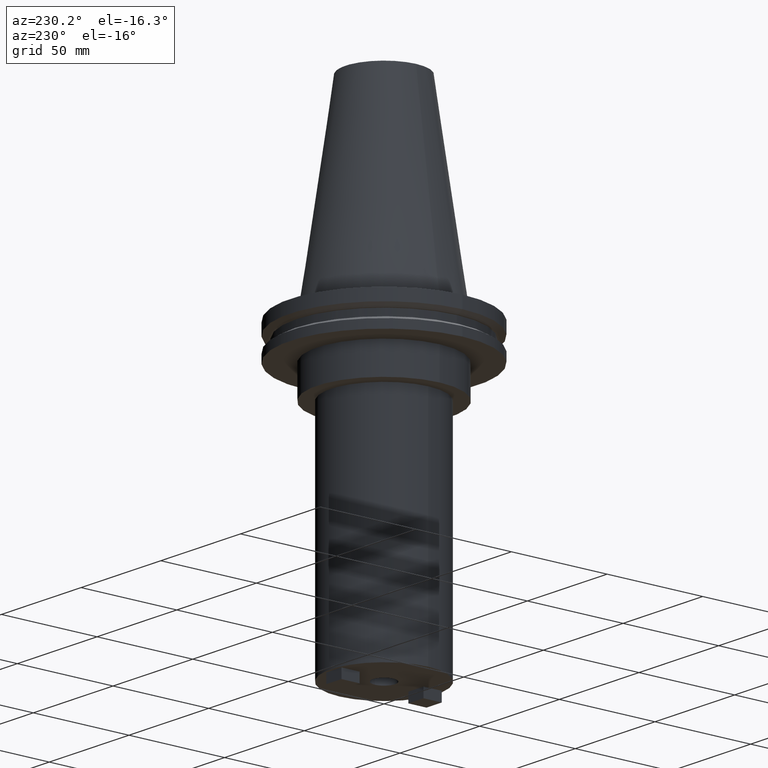
[diagram: clean part render]
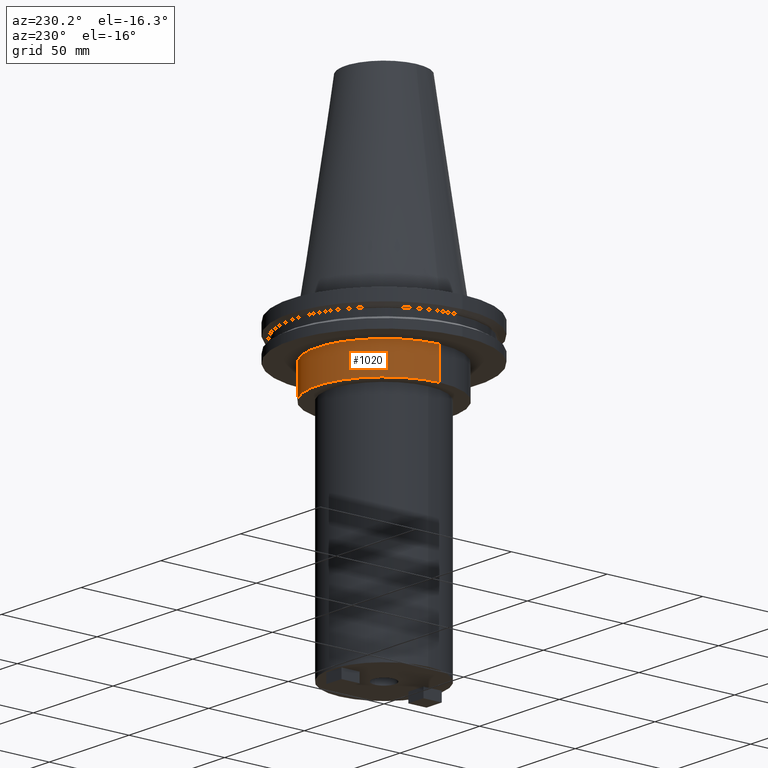
[diagram: same view with one face highlighted and labeled with its STEP entity id]
A machine part, auxiliary view. The second image highlights one B-rep face of the part: STEP entity #1020.
In plain terms, the highlighted cylindrical surface (partial cylindrical patch) has radius 34.925 mm, axis along (-0, -0, 1).
Its self-contained STEP definition (entity closure, byte-faithful):
#26 = VERTEX_POINT ( 'NONE', #225 ) ;
#124 = EDGE_CURVE ( 'NONE', #773, #1072, #734, .T. ) ;
#127 = CARTESIAN_POINT ( 'NONE',  ( 0.000000000000000000, 0.000000000000000000, 101.5999999999999943 ) ) ;
#133 = EDGE_LOOP ( 'NONE', ( #1035, #919, #988, #987 ) ) ;
#163 = CARTESIAN_POINT ( 'NONE',  ( -34.92499999999999716, 4.277078946022130887E-15, -19.04999999999999716 ) ) ;
#172 = DIRECTION ( 'NONE',  ( -0.000000000000000000, -0.000000000000000000, 1.000000000000000000 ) ) ;
#197 = EDGE_CURVE ( 'NONE', #773, #26, #589, .T. ) ;
#199 = EDGE_CURVE ( 'NONE', #1072, #910, #994, .T. ) ;
#225 = CARTESIAN_POINT ( 'NONE',  ( 34.92499999999999716, 0.000000000000000000, -19.04999999999999716 ) ) ;
#283 = VECTOR ( 'NONE', #416, 1000.000000000000000 ) ;
#416 = DIRECTION ( 'NONE',  ( -0.000000000000000000, -0.000000000000000000, 1.000000000000000000 ) ) ;
#468 = AXIS2_PLACEMENT_3D ( 'NONE', #918, #862, #689 ) ;
#474 = VECTOR ( 'NONE', #172, 1000.000000000000000 ) ;
#502 = CARTESIAN_POINT ( 'NONE',  ( -34.92499999999999716, 4.277078946022130887E-15, 101.5999999999999943 ) ) ;
#589 = LINE ( 'NONE', #933, #474 ) ;
#599 = EDGE_CURVE ( 'NONE', #26, #910, #948, .T. ) ;
#689 = DIRECTION ( 'NONE',  ( 1.000000000000000000, 0.000000000000000000, 0.000000000000000000 ) ) ;
#734 = CIRCLE ( 'NONE', #803, 34.92499999999999716 ) ;
#748 = CARTESIAN_POINT ( 'NONE',  ( 34.92499999999999716, 0.000000000000000000, -35.04999999999999716 ) ) ;
#756 = DIRECTION ( 'NONE',  ( -0.000000000000000000, -0.000000000000000000, 1.000000000000000000 ) ) ;
#773 = VERTEX_POINT ( 'NONE', #748 ) ;
#793 = FACE_OUTER_BOUND ( 'NONE', #133, .T. ) ;
#803 = AXIS2_PLACEMENT_3D ( 'NONE', #917, #756, #1089 ) ;
#804 = DIRECTION ( 'NONE',  ( -0.000000000000000000, -0.000000000000000000, 1.000000000000000000 ) ) ;
#862 = DIRECTION ( 'NONE',  ( -0.000000000000000000, -0.000000000000000000, 1.000000000000000000 ) ) ;
#877 = CYLINDRICAL_SURFACE ( 'NONE', #996, 34.92499999999999716 ) ;
#910 = VERTEX_POINT ( 'NONE', #163 ) ;
#917 = CARTESIAN_POINT ( 'NONE',  ( 0.000000000000000000, 0.000000000000000000, -35.04999999999999716 ) ) ;
#918 = CARTESIAN_POINT ( 'NONE',  ( 0.000000000000000000, 0.000000000000000000, -19.04999999999999716 ) ) ;
#919 = ORIENTED_EDGE ( 'NONE', *, *, #199, .T. ) ;
#933 = CARTESIAN_POINT ( 'NONE',  ( 34.92499999999999716, 0.000000000000000000, 101.5999999999999943 ) ) ;
#948 = CIRCLE ( 'NONE', #468, 34.92499999999999716 ) ;
#959 = DIRECTION ( 'NONE',  ( 1.000000000000000000, 0.000000000000000000, 0.000000000000000000 ) ) ;
#968 = CARTESIAN_POINT ( 'NONE',  ( -34.92499999999999716, 4.277078946022130887E-15, -35.04999999999999716 ) ) ;
#987 = ORIENTED_EDGE ( 'NONE', *, *, #197, .F. ) ;
#988 = ORIENTED_EDGE ( 'NONE', *, *, #599, .F. ) ;
#994 = LINE ( 'NONE', #502, #283 ) ;
#996 = AXIS2_PLACEMENT_3D ( 'NONE', #127, #804, #959 ) ;
#1020 = ADVANCED_FACE ( 'NONE', ( #793 ), #877, .T. ) ;
#1035 = ORIENTED_EDGE ( 'NONE', *, *, #124, .T. ) ;
#1072 = VERTEX_POINT ( 'NONE', #968 ) ;
#1089 = DIRECTION ( 'NONE',  ( 1.000000000000000000, 0.000000000000000000, 0.000000000000000000 ) ) ;